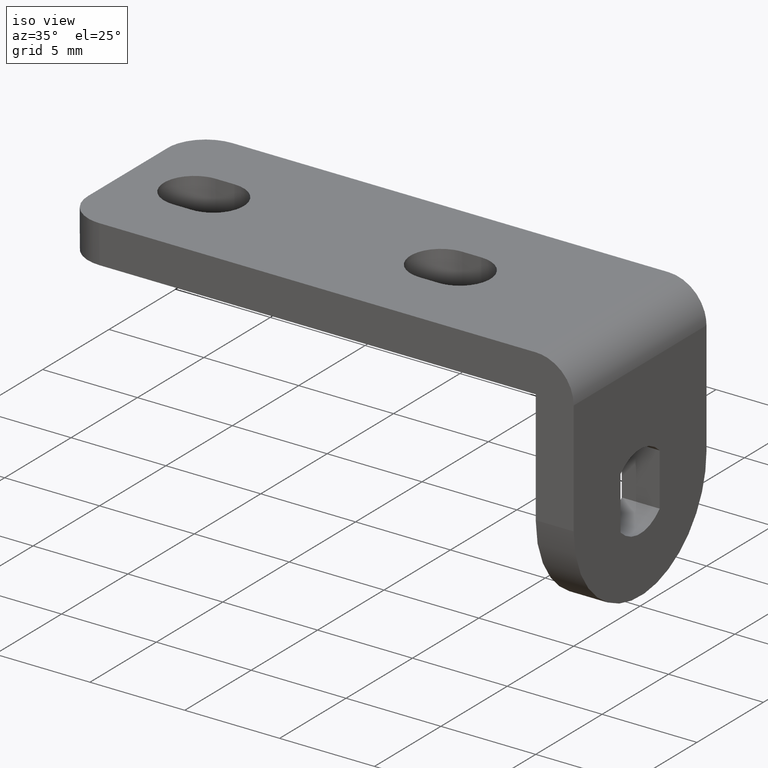
[diagram: clean part render]
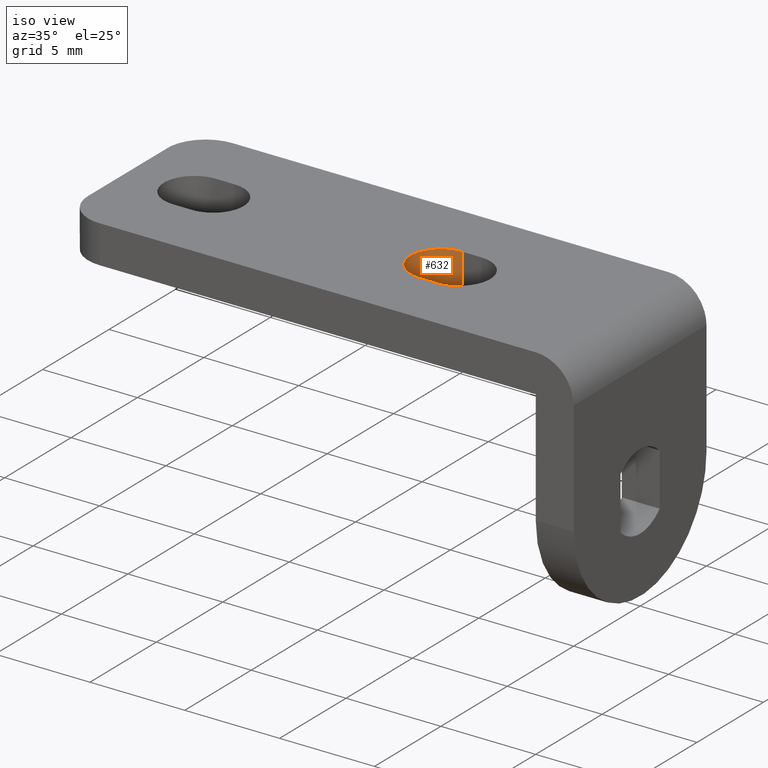
[diagram: same view with one face highlighted and labeled with its STEP entity id]
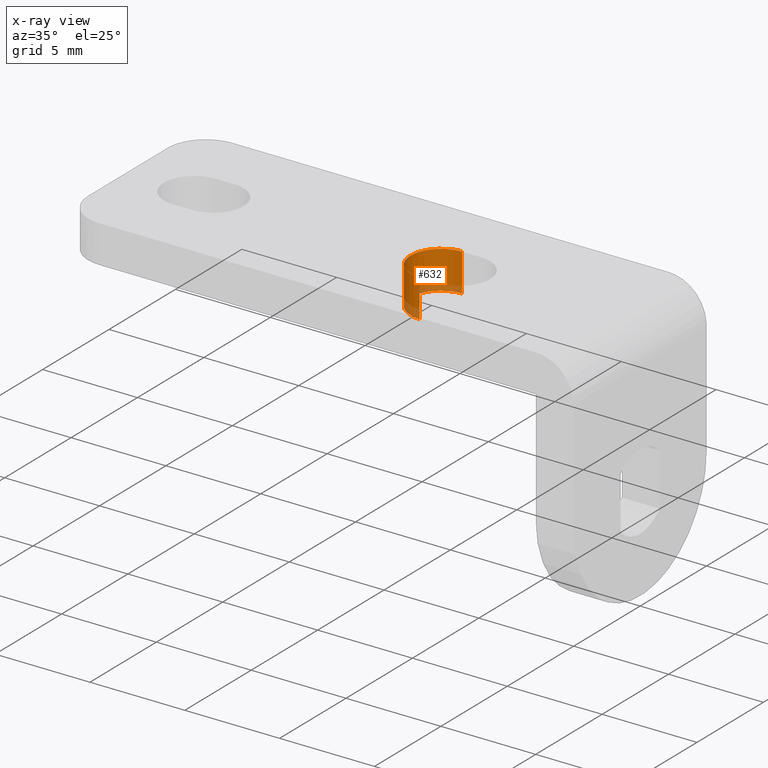
[diagram: x-ray of the same camera — body ghosted, the highlighted face saturated]
A machine part, iso view. The second image highlights one B-rep face of the part: STEP entity #632.
The next image is the same camera in x-ray: the body ghosted, the highlighted face saturated — about 19% of this face is hidden behind the body in this view.
In plain terms, the highlighted face is a freeform B-spline surface patch.
Its self-contained STEP definition (entity closure, byte-faithful):
#533=CARTESIAN_POINT('',(-10.499999999999700,-1.600000000000000,8.0));
#534=VERTEX_POINT('',#533);
#541=CARTESIAN_POINT('',(-10.499999999999700,-1.600000000000000,6.0));
#542=VERTEX_POINT('',#541);
#548=CARTESIAN_POINT('',(-10.499999999999700,-1.600000000000000,6.0));
#549=CARTESIAN_POINT('',(-10.499999999999700,-1.600000000000000,8.0));
#550=QUASI_UNIFORM_CURVE('',1,(#548,#549),.UNSPECIFIED.,.F.,.U.);
#551=EDGE_CURVE('',#542,#534,#550,.T.);
#556=CARTESIAN_POINT('',(-10.458116882707101,-1.599451719960891,5.949999999999999));
#557=CARTESIAN_POINT('',(-10.458116882707101,-1.599451719960891,8.051250000000000));
#558=CARTESIAN_POINT('',(-12.128925946821179,-1.643203395070871,5.950000000000001));
#559=CARTESIAN_POINT('',(-12.128925946821179,-1.643203395070871,8.051250000000000));
#560=CARTESIAN_POINT('',(-12.099756312249930,0.027923850299651,5.949999999999999));
#561=CARTESIAN_POINT('',(-12.099756312249930,0.027923850299651,8.051250000000000));
#562=CARTESIAN_POINT('',(-12.070586677678673,1.699051095670173,5.950000000000001));
#563=CARTESIAN_POINT('',(-12.070586677678673,1.699051095670173,8.051250000000000));
#564=CARTESIAN_POINT('',(-10.402322336743930,1.597015677474984,5.949999999999999));
#565=CARTESIAN_POINT('',(-10.402322336743930,1.597015677474984,8.051250000000000));
#573=(BOUNDED_SURFACE()B_SPLINE_SURFACE(1,2,((#556,#558,#560,#562,#564),(#557,#559,#561,#563,#565)),.UNSPECIFIED.,.F.,.F.,.U.)B_SPLINE_SURFACE_WITH_KNOTS((2,2),(3,2,3),(0.0,2.101250000000000),(0.0,2.733132529706891,5.466265059413781),.UNSPECIFIED.)GEOMETRIC_REPRESENTATION_ITEM()RATIONAL_B_SPLINE_SURFACE(((1.0,0.691513055782269,1.0,0.691513055782269,1.0),(1.0,0.691513055782269,1.0,0.691513055782269,1.0)))REPRESENTATION_ITEM('')SURFACE());
#574=CARTESIAN_POINT('',(-10.499999999999700,1.600000000000000,8.0));
#575=VERTEX_POINT('',#574);
#576=CARTESIAN_POINT('',(-10.499999999999700,-1.600000000000000,8.0));
#577=CARTESIAN_POINT('',(-10.676730013732641,-1.600124654024711,7.999999999999968));
#578=CARTESIAN_POINT('',(-10.931902894501629,-1.557264343815840,8.000000000000039));
#579=CARTESIAN_POINT('',(-11.227459998102280,-1.430535885465913,7.999999999999976));
#580=CARTESIAN_POINT('',(-11.424316867118341,-1.312545413166747,7.999999999999991));
#581=CARTESIAN_POINT('',(-11.638580021083939,-1.138930995728724,8.000000000000055));
#582=CARTESIAN_POINT('',(-11.828094046217940,-0.910865655719292,7.999999999999946));
#583=CARTESIAN_POINT('',(-11.975217966323040,-0.639594651604865,8.000000000000023));
#584=CARTESIAN_POINT('',(-12.067628858734871,-0.365551931962362,8.0));
#585=CARTESIAN_POINT('',(-12.108338493190701,-0.065786757975702,7.999999999999919));
#586=CARTESIAN_POINT('',(-12.092365153996280,0.222969114206106,7.999999999999699));
#587=CARTESIAN_POINT('',(-12.021456730237009,0.530048067928637,8.000000000000634));
#588=CARTESIAN_POINT('',(-11.900628248275790,0.793843357533360,7.999999999999071));
#589=CARTESIAN_POINT('',(-11.729149522435590,1.034136629034114,8.000000000000753));
#590=CARTESIAN_POINT('',(-11.568580726927969,1.198700319378076,7.999999999999452));
#591=CARTESIAN_POINT('',(-11.370272387757041,1.349578853776335,8.000000000000217));
#592=CARTESIAN_POINT('',(-11.122811760325011,1.485808156861209,8.000000000000076));
#593=CARTESIAN_POINT('',(-10.820704730664330,1.579475527109291,7.999999999999301));
#594=CARTESIAN_POINT('',(-10.598171733730560,1.600005773518209,8.000000000001036));
#595=CARTESIAN_POINT('',(-10.499999999999700,1.600000000000000,8.0));
#596=B_SPLINE_CURVE_WITH_KNOTS('',3,(#576,#577,#578,#579,#580,#581,#582,#583,#584,#585,#586,#587,#588,#589,#590,#591,#592,#593,#594,#595),.UNSPECIFIED.,.F.,.U.,(4,1,1,1,1,1,1,1,1,1,1,1,1,1,1,1,1,4),(0.000000073198843,0.530133957998176,0.765765101638773,0.962117719035275,1.217375341911839,1.590448535320394,1.845703604581517,2.140224666012200,2.454402919323516,2.748894250815750,3.004161235012215,3.396861992770847,3.612853210160989,3.887746300851170,4.084097437795805,4.358988920833374,4.732060550552116,5.026579785226460),.UNSPECIFIED.);
#597=EDGE_CURVE('',#534,#575,#596,.T.);
#598=ORIENTED_EDGE('',*,*,#597,.F.);
#599=ORIENTED_EDGE('',*,*,#551,.F.);
#600=CARTESIAN_POINT('',(-10.499999999999700,1.600000000000000,6.0));
#601=VERTEX_POINT('',#600);
#602=CARTESIAN_POINT('',(-10.499999999999700,-1.600000000000000,6.0));
#603=CARTESIAN_POINT('',(-10.604715116906100,-1.600014646570886,6.000000000000010));
#604=CARTESIAN_POINT('',(-10.801053157799959,-1.580650486794784,5.999999999999975));
#605=CARTESIAN_POINT('',(-11.110217959797691,-1.491025853494134,6.000000000000026));
#606=CARTESIAN_POINT('',(-11.378417692745440,-1.349774715504093,5.999999999999958));
#607=CARTESIAN_POINT('',(-11.638574366229310,-1.138922384823538,6.000000000000060));
#608=CARTESIAN_POINT('',(-11.828095784026949,-0.910868282523940,5.999999999999955));
#609=CARTESIAN_POINT('',(-11.975217677076360,-0.639594223121774,6.000000000000015));
#610=CARTESIAN_POINT('',(-12.067628883094610,-0.365551961625126,5.999999999999999));
#611=CARTESIAN_POINT('',(-12.108338485122729,-0.065786748151362,5.999999999999935));
#612=CARTESIAN_POINT('',(-12.092365155031921,0.222969112945010,5.999999999999775));
#613=CARTESIAN_POINT('',(-12.021456729983260,0.530048068237631,6.000000000000477));
#614=CARTESIAN_POINT('',(-11.900628248347481,0.793843357446070,5.999999999999302));
#615=CARTESIAN_POINT('',(-11.729149522425431,1.034136629046482,6.000000000000568));
#616=CARTESIAN_POINT('',(-11.568580726927969,1.198700319378076,5.999999999999586));
#617=CARTESIAN_POINT('',(-11.370272387757050,1.349578853776334,6.000000000000167));
#618=CARTESIAN_POINT('',(-11.122811760325019,1.485808156861208,6.000000000000058));
#619=CARTESIAN_POINT('',(-10.820704730664319,1.579475527109291,5.999999999999471));
#620=CARTESIAN_POINT('',(-10.598171733730560,1.600005773518209,6.000000000000783));
#621=CARTESIAN_POINT('',(-10.499999999999700,1.600000000000000,6.0));
#622=B_SPLINE_CURVE_WITH_KNOTS('',3,(#602,#603,#604,#605,#606,#607,#608,#609,#610,#611,#612,#613,#614,#615,#616,#617,#618,#619,#620,#621),.UNSPECIFIED.,.F.,.U.,(4,1,1,1,1,1,1,1,1,1,1,1,1,1,1,1,1,4),(0.000000073198843,0.314143649112340,0.589040055400008,0.962117719035275,1.217375341911839,1.590448535320394,1.845703604581517,2.140224666012200,2.454402919323516,2.748894250815750,3.004161235012215,3.396861992770847,3.612853210160989,3.887746300851170,4.084097437795805,4.358988920833374,4.732060550552116,5.026579785226460),.UNSPECIFIED.);
#623=EDGE_CURVE('',#542,#601,#622,.T.);
#624=ORIENTED_EDGE('',*,*,#623,.T.);
#625=CARTESIAN_POINT('',(-10.499999999999700,1.600000000000000,6.0));
#626=CARTESIAN_POINT('',(-10.499999999999700,1.600000000000000,8.0));
#627=QUASI_UNIFORM_CURVE('',1,(#625,#626),.UNSPECIFIED.,.F.,.U.);
#628=EDGE_CURVE('',#601,#575,#627,.T.);
#629=ORIENTED_EDGE('',*,*,#628,.T.);
#630=EDGE_LOOP('',(#598,#599,#624,#629));
#631=FACE_OUTER_BOUND('',#630,.T.);
#632=ADVANCED_FACE('',(#631),#573,.F.);